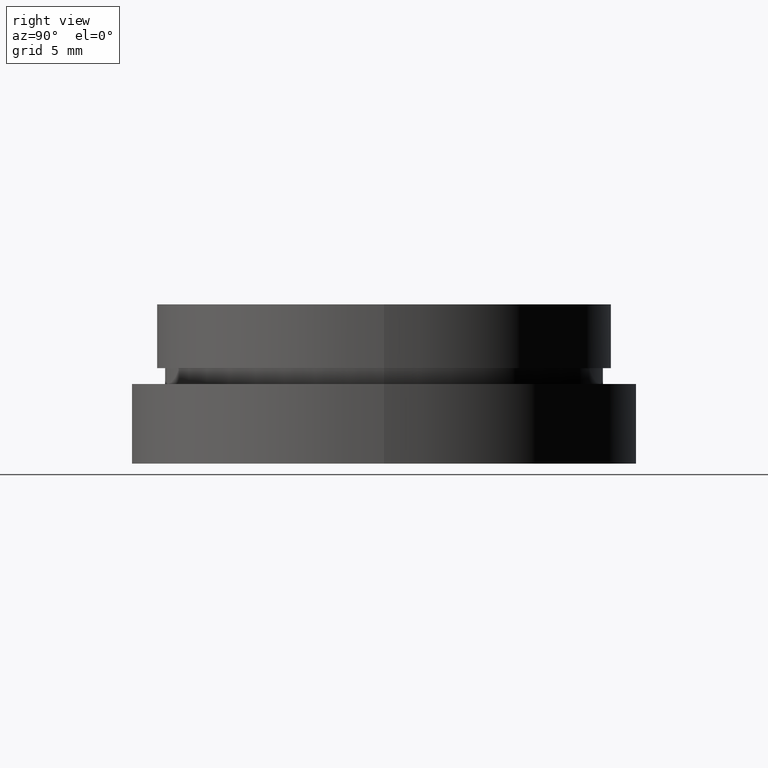
[diagram: clean part render]
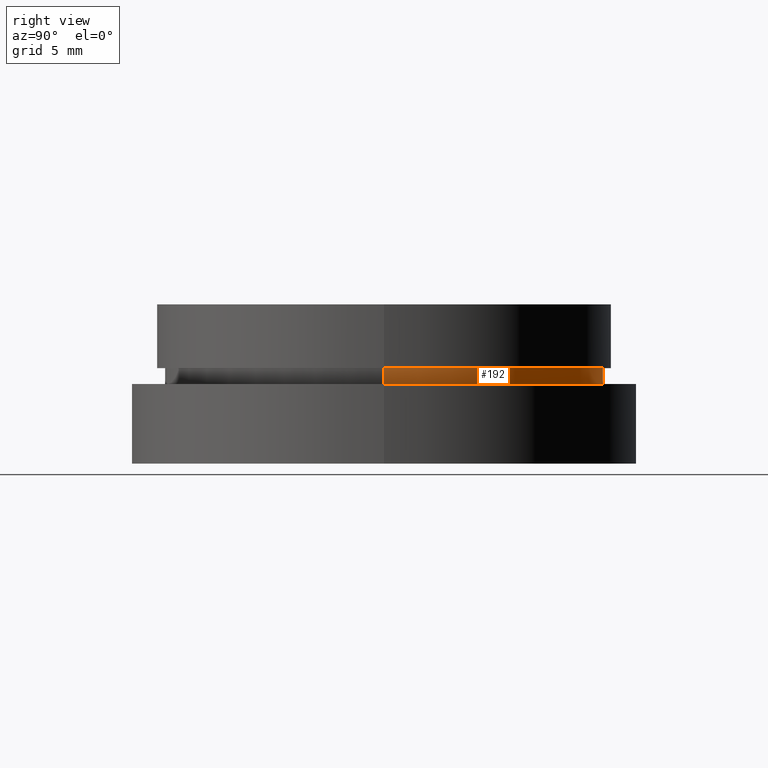
[diagram: same view with one face highlighted and labeled with its STEP entity id]
A machine part, right view. The second image highlights one B-rep face of the part: STEP entity #192.
In plain terms, the highlighted cylindrical surface (partial cylindrical patch) has radius 13.75 mm, axis along (-0, -0, -1).
Its self-contained STEP definition (entity closure, byte-faithful):
#2 = EDGE_LOOP ( 'NONE', ( #157, #179, #164, #184 ) ) ;
#3 = CARTESIAN_POINT ( 'NONE',  ( 13.75000000000000400, 1.683889348827611200E-015, -5.000000000000000900 ) ) ;
#14 = FACE_OUTER_BOUND ( 'NONE', #2, .T. ) ;
#22 = VERTEX_POINT ( 'NONE', #3 ) ;
#38 = CARTESIAN_POINT ( 'NONE',  ( 0.0000000000000000000, 0.0000000000000000000, -19.14057971014493000 ) ) ;
#66 = DIRECTION ( 'NONE',  ( -0.0000000000000000000, -0.0000000000000000000, -1.000000000000000000 ) ) ;
#83 = VECTOR ( 'NONE', #304, 1000.000000000000000 ) ;
#99 = VERTEX_POINT ( 'NONE', #224 ) ;
#119 = CARTESIAN_POINT ( 'NONE',  ( -13.75000000000000400, 0.0000000000000000000, -5.000000000000000900 ) ) ;
#121 = VERTEX_POINT ( 'NONE', #119 ) ;
#154 = LINE ( 'NONE', #218, #83 ) ;
#157 = ORIENTED_EDGE ( 'NONE', *, *, #421, .T. ) ;
#164 = ORIENTED_EDGE ( 'NONE', *, *, #374, .F. ) ;
#179 = ORIENTED_EDGE ( 'NONE', *, *, #406, .T. ) ;
#182 = LINE ( 'NONE', #223, #318 ) ;
#184 = ORIENTED_EDGE ( 'NONE', *, *, #356, .F. ) ;
#191 = CARTESIAN_POINT ( 'NONE',  ( 0.0000000000000000000, 0.0000000000000000000, -5.000000000000000900 ) ) ;
#192 = ADVANCED_FACE ( 'NONE', ( #14 ), #302, .T. ) ;
#205 = AXIS2_PLACEMENT_3D ( 'NONE', #38, #66, #230 ) ;
#211 = DIRECTION ( 'NONE',  ( -0.0000000000000000000, -0.0000000000000000000, -1.000000000000000000 ) ) ;
#218 = CARTESIAN_POINT ( 'NONE',  ( 13.75000000000000400, 1.683889348827611200E-015, -19.14057971014493000 ) ) ;
#223 = CARTESIAN_POINT ( 'NONE',  ( -13.75000000000000400, 0.0000000000000000000, -19.14057971014493000 ) ) ;
#224 = CARTESIAN_POINT ( 'NONE',  ( -13.75000000000000400, 0.0000000000000000000, -4.000000000000000000 ) ) ;
#230 = DIRECTION ( 'NONE',  ( -1.000000000000000000, 0.0000000000000000000, 0.0000000000000000000 ) ) ;
#263 = CIRCLE ( 'NONE', #337, 13.75000000000000400 ) ;
#295 = DIRECTION ( 'NONE',  ( -0.0000000000000000000, -0.0000000000000000000, -1.000000000000000000 ) ) ;
#296 = CARTESIAN_POINT ( 'NONE',  ( 0.0000000000000000000, 0.0000000000000000000, -4.000000000000000000 ) ) ;
#302 = CYLINDRICAL_SURFACE ( 'NONE', #205, 13.75000000000000400 ) ;
#304 = DIRECTION ( 'NONE',  ( -0.0000000000000000000, -0.0000000000000000000, -1.000000000000000000 ) ) ;
#318 = VECTOR ( 'NONE', #211, 1000.000000000000000 ) ;
#330 = CIRCLE ( 'NONE', #373, 13.75000000000000400 ) ;
#337 = AXIS2_PLACEMENT_3D ( 'NONE', #296, #349, #364 ) ;
#349 = DIRECTION ( 'NONE',  ( -0.0000000000000000000, -0.0000000000000000000, -1.000000000000000000 ) ) ;
#356 = EDGE_CURVE ( 'NONE', #99, #121, #182, .T. ) ;
#361 = VERTEX_POINT ( 'NONE', #424 ) ;
#364 = DIRECTION ( 'NONE',  ( -1.000000000000000000, 0.0000000000000000000, 0.0000000000000000000 ) ) ;
#373 = AXIS2_PLACEMENT_3D ( 'NONE', #191, #295, #410 ) ;
#374 = EDGE_CURVE ( 'NONE', #121, #22, #330, .T. ) ;
#406 = EDGE_CURVE ( 'NONE', #361, #22, #154, .T. ) ;
#410 = DIRECTION ( 'NONE',  ( -1.000000000000000000, 0.0000000000000000000, 0.0000000000000000000 ) ) ;
#421 = EDGE_CURVE ( 'NONE', #99, #361, #263, .T. ) ;
#424 = CARTESIAN_POINT ( 'NONE',  ( 13.75000000000000400, 1.683889348827611200E-015, -4.000000000000000000 ) ) ;